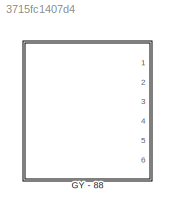
MODEL slx_3715fc1407d4
KIND library
CONFIG AbsTol = auto
CONFIG FixedStep = auto
CONFIG MaxStep = auto
CONFIG MinStep = auto
CONFIG RelTol = 1e-3
CONFIG SampleTimeConstraint = Unconstrained
CONFIG Solver = ode45
CONFIG SolverMode = Auto
CONFIG SolverName = ode45
CONFIG StartTime = 0.0
CONFIG StopTime = 10.0
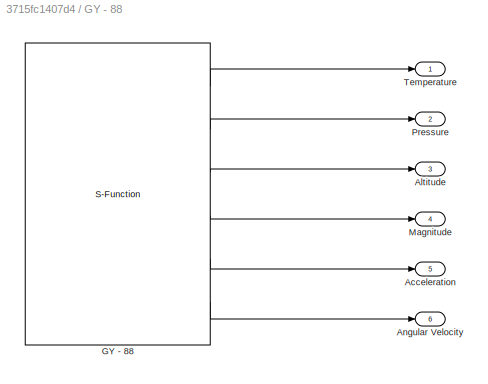
BLOCK [SubSystem] GY - 88 
  Ports = [0, 6]
  RequestExecContextInheritance = off
BLOCK [Outport] GY - 88 /Acceleration
  IconDisplay = Port number
  Port = 5
BLOCK [Outport] GY - 88 /Altitude
  IconDisplay = Port number
  Port = 3
BLOCK [Outport] GY - 88 /Angular Velocity
  IconDisplay = Port number
  Port = 6
BLOCK [S-Function] GY - 88 /GY - 88 
  CopyFcn = set_param(gcbh,'LinkStatus','none')
  FunctionName = GY_88
  InitFcn = try, set_param(gcb,'FunctionName','GY_88'), end
  OpenFcn = sfunctionwizard(gcbh)
  Parameters = 0.02
  Ports = [0, 6]
  PreSaveFcn = try, set_param(gcb,'FunctionName','GY_88'), end
  SFunctionModules = GY_88_wrapper
BLOCK [Outport] GY - 88 /Magnitude
  IconDisplay = Port number
  Port = 4
BLOCK [Outport] GY - 88 /Pressure
  IconDisplay = Port number
  Port = 2
BLOCK [Outport] GY - 88 /Temperature
  IconDisplay = Port number
LINE GY - 88 /GY - 88 :1 -> GY - 88 /Temperature:1
LINE GY - 88 /GY - 88 :2 -> GY - 88 /Pressure:1
LINE GY - 88 /GY - 88 :3 -> GY - 88 /Altitude:1
LINE GY - 88 /GY - 88 :4 -> GY - 88 /Magnitude:1
LINE GY - 88 /GY - 88 :5 -> GY - 88 /Acceleration:1
LINE GY - 88 /GY - 88 :6 -> GY - 88 /Angular Velocity:1
